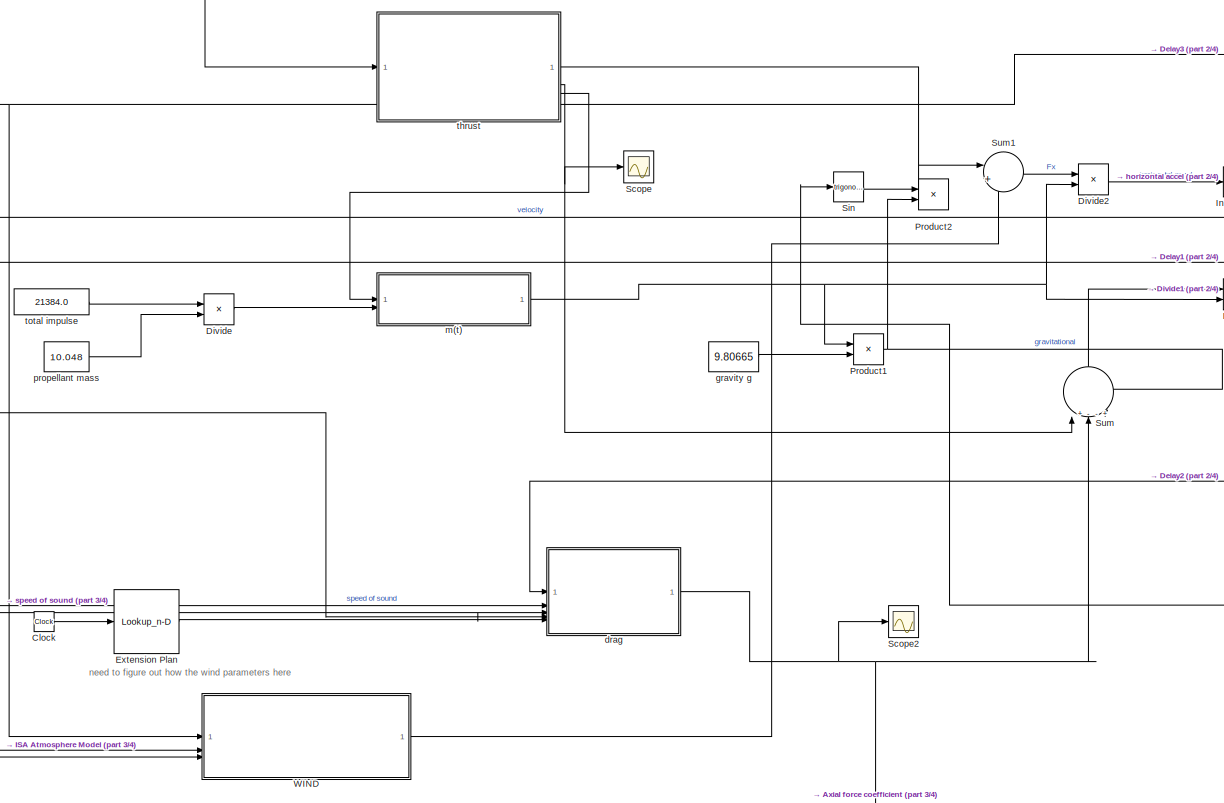
[diagram: root canvas - part 1/4, middle left region]
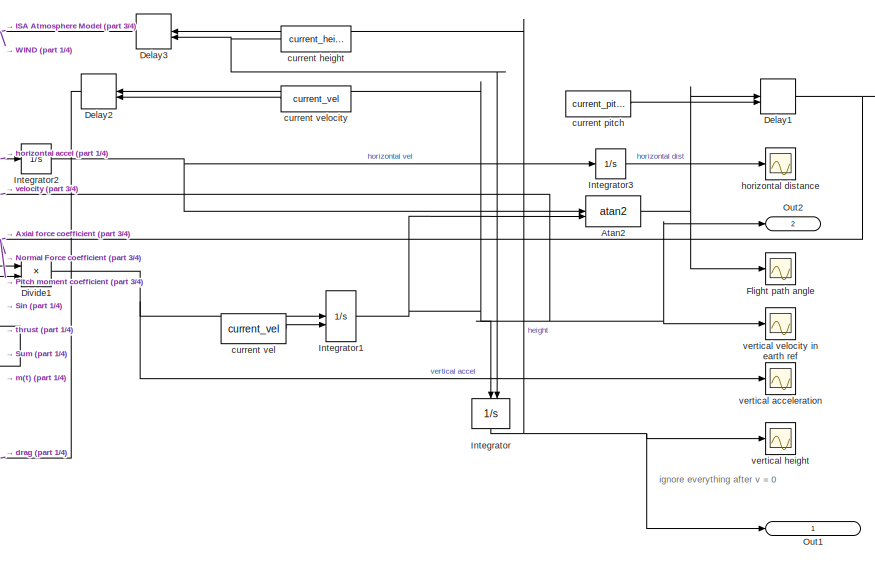
[diagram: root canvas - part 2/4, top center region]
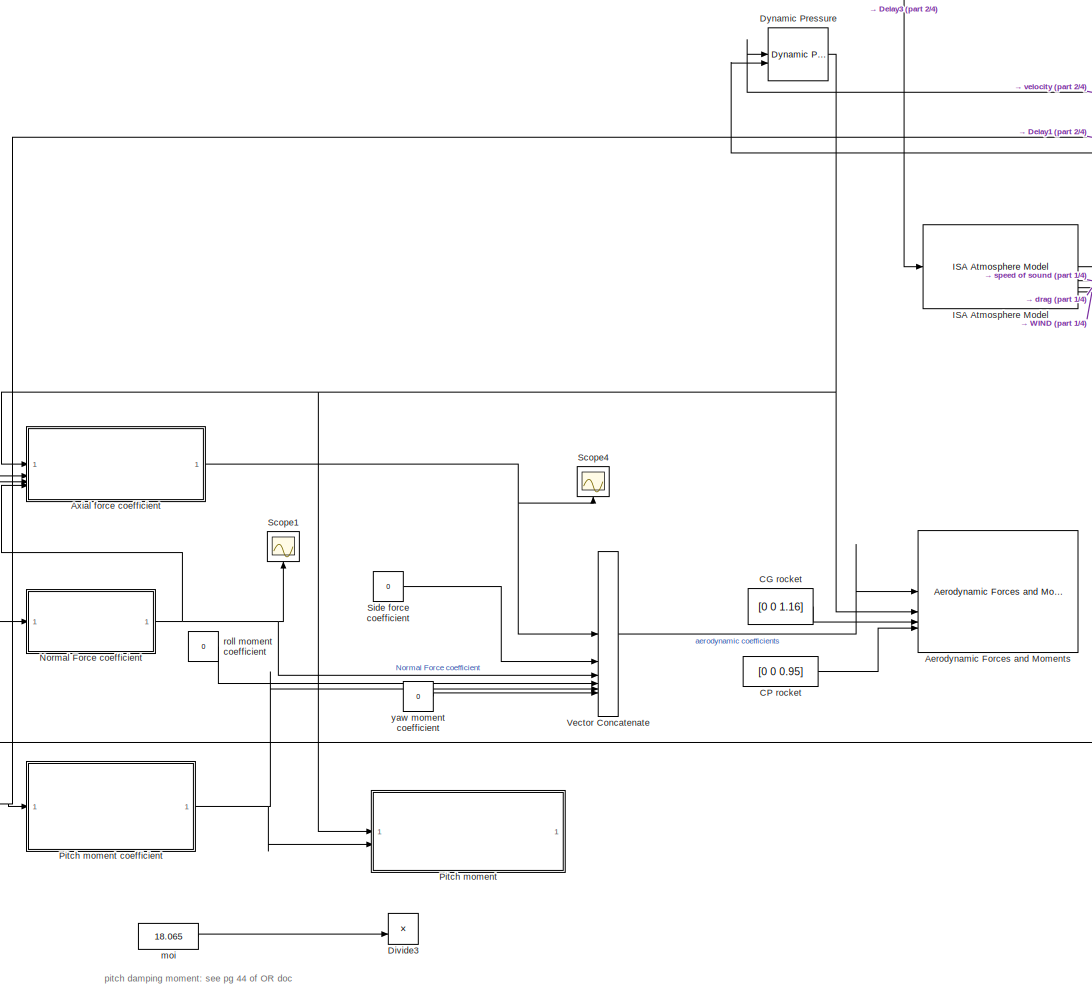
[diagram: root canvas - part 3/4, left side, full height]
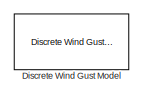
[diagram: root canvas - part 4/4, middle right region]
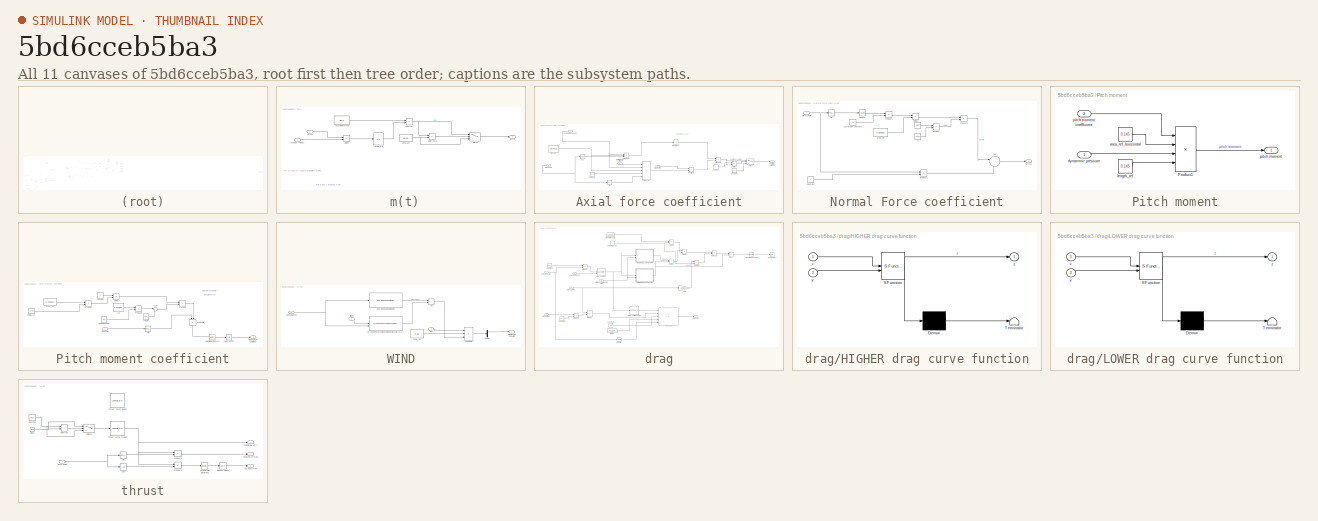
[diagram: thumbnail index - all 11 canvases of the model, root first then tree order]
MODEL slx_5bd6cceb5ba3
KIND model
CONFIG AbsTol = auto
CONFIG EnableMultiTasking = off
CONFIG FixedStep = auto
CONFIG MaxStep = auto
CONFIG MinStep = auto
CONFIG RelTol = 1e-3
CONFIG SampleTimeConstraint = Unconstrained
CONFIG SolverName = ode15s
CONFIG StartTime = 0
CONFIG StopTime = 200.0
BLOCK [SubSystem]  m(t)
BLOCK [Constant]  m(t)/Constant
  Value = 26.45
BLOCK [Product]  m(t)/Divide
  Inputs = */
BLOCK [Integrator]  m(t)/Integrator
BLOCK [Sum]  m(t)/Subtract
  IconShape = rectangular
  Inputs = +-
BLOCK [Sum]  m(t)/Subtract1
  IconShape = rectangular
  Inputs = +-
BLOCK [Switch]  m(t)/Switch
  Criteria = u2 > Threshold
  InputSameDT = off
  SaturateOnIntegerOverflow = off
BLOCK [Constant]  m(t)/Total initial mass
  Value = 36.5
BLOCK [Inport]  m(t)/exhaust velocity
  Port = 2
BLOCK [Outport]  m(t)/m(t)
BLOCK [Inport]  m(t)/thrust
BLOCK [Reference] Aerodynamic Forces and Moments   REF=aerolibadyn/Aerodynamic
Forces and Moments 
  Commented = on
  SourceBlock = aerolibadyn/Aerodynamic\nForces and Moments
  SourceType = Aerodynamic Forces and Moments
BLOCK [Trigonometry] Atan2
  Operator = atan2
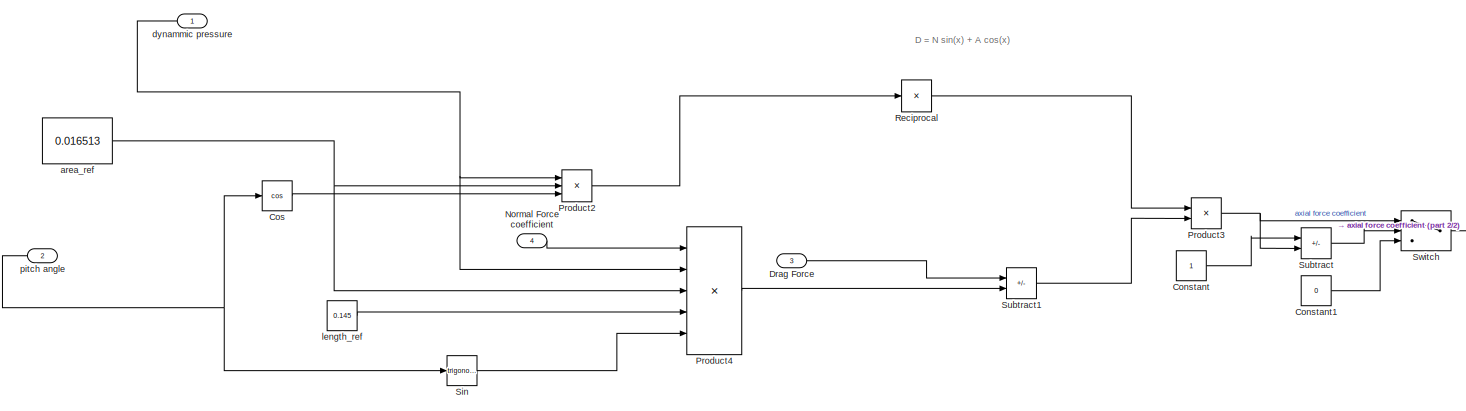
[diagram: Axial force coefficient - part 1/2, most of the canvas]
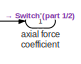
[diagram: Axial force coefficient - part 2/2, middle right region]
BLOCK [SubSystem] Axial force coefficient
  Commented = on
BLOCK [Constant] Axial force coefficient/Constant
BLOCK [Constant] Axial force coefficient/Constant1
  Value = 0
BLOCK [Trigonometry] Axial force coefficient/Cos
  Operator = cos
BLOCK [Inport] Axial force coefficient/Drag Force
  Port = 3
BLOCK [Inport] Axial force coefficient/Normal Force coefficient
  Port = 4
BLOCK [Product] Axial force coefficient/Product2
  Inputs = 3
BLOCK [Product] Axial force coefficient/Product3
BLOCK [Product] Axial force coefficient/Product4
  Inputs = 5
BLOCK [Product] Axial force coefficient/Reciprocal
  Inputs = /
BLOCK [Trigonometry] Axial force coefficient/Sin
BLOCK [Sum] Axial force coefficient/Subtract
  IconShape = rectangular
  Inputs = +-
BLOCK [Sum] Axial force coefficient/Subtract1
  IconShape = rectangular
  Inputs = +-
BLOCK [Switch] Axial force coefficient/Switch
  Criteria = u2 > Threshold
  InputSameDT = off
  SaturateOnIntegerOverflow = off
BLOCK [Constant] Axial force coefficient/area_ref
  Value = 0.016513
BLOCK [Outport] Axial force coefficient/axial force coefficient 
BLOCK [Inport] Axial force coefficient/dynammic pressure
BLOCK [Constant] Axial force coefficient/length_ref
  Value = 0.145
BLOCK [Inport] Axial force coefficient/pitch angle
  Port = 2
BLOCK [Constant] CG rocket
  Commented = on
  Value = [0 0 1.16]
  VectorParams1D = off
BLOCK [Constant] CP rocket
  Commented = on
  Value = [0 0 0.95]
  VectorParams1D = off
BLOCK [Clock] Clock
BLOCK [Delay] Delay1
  DelayLength = 1
  InitialConditionSource = Input port
  InputPortMap = u0,p4
BLOCK [Delay] Delay2
  DelayLength = 1
  InitialConditionSource = Input port
  InputPortMap = u0,p4
BLOCK [Delay] Delay3
  DelayLength = 1
  InitialConditionSource = Input port
  InputPortMap = u0,p4
BLOCK [Reference] Discrete Wind Gust Model  REF=aerolibwind2/Discrete Wind Gust Model
  SourceBlock = aerolibwind2/Discrete Wind Gust Model
  SourceType = Discrete Wind Gust Model
BLOCK [Product] Divide
  Inputs = */
BLOCK [Product] Divide1
  Inputs = */
BLOCK [Product] Divide2
  Inputs = */
BLOCK [Product] Divide3
  Commented = on
  Inputs = */
BLOCK [Reference] Dynamic Pressure  REF=aerolibasang/Dynamic Pressure
  Commented = on
  SourceBlock = aerolibasang/Dynamic Pressure
  SourceType = Dynamic Pressure
BLOCK [Lookup_n-D] Extension Plan
  BreakpointsForDimension1 = [0 4.99 5 5.1 5.11 6]
  InputPortMap = u0
  InternalRulePriority = Speed
  NumberOfTableDimensions = 1
  RndMeth = Simplest
  Table = [0 0 extension_length 0.01*extension_length 0 0]
BLOCK [Scope] Flight path angle
  Floating = off
  NumInputPorts = 1
  ScopeSpecificationString = Simulink.scopes.TimeScopeBlockCfg('CurrentConfiguration', extmgr.ConfigurationSet(extmgr.Configuration('Core','General UI',true),extmgr.Configuration('Core','Source UI',true),extmgr.Configuration('Sources','WiredSimulink',true,'DataLoggingVariableName','ScopeData1'),extmgr.Configuration('Visuals','Time Domain',true,'SerializedDisplays',{struct('MinYLimReal','-0.05','MaxYLimReal','1.56955','YLabelR...<+1469ch>
BLOCK [Reference] ISA Atmosphere Model  REF=aerolibatmos2/ISA Atmosphere Model
  SourceBlock = aerolibatmos2/ISA Atmosphere Model
  SourceType = International Standard Atmosphere Model
BLOCK [Integrator] Integrator
  InitialConditionSource = external
  NameLocation = left
BLOCK [Integrator] Integrator1
  InitialConditionSource = external
BLOCK [Integrator] Integrator2
BLOCK [Integrator] Integrator3
BLOCK [SubSystem] Normal Force coefficient
  Commented = on
BLOCK [Constant] Normal Force coefficient/Constant
  Value = 4
BLOCK [Product] Normal Force coefficient/Divide1
  Inputs = */
BLOCK [Outport] Normal Force coefficient/Normal
BLOCK [Product] Normal Force coefficient/Product
BLOCK [Product] Normal Force coefficient/Product1
BLOCK [Product] Normal Force coefficient/Product2
BLOCK [Product] Normal Force coefficient/Product3
BLOCK [Trigonometry] Normal Force coefficient/Sin
BLOCK [Math] Normal Force coefficient/Square
  Operator = square
BLOCK [Sum] Normal Force coefficient/Sum
  Inputs = |++
BLOCK [Constant] Normal Force coefficient/area_ref
  Value = 0.016513
BLOCK [Constant] Normal Force coefficient/correction constant
  Value = 1.1
BLOCK [Constant] Normal Force coefficient/d
  Value = 0.145
BLOCK [Constant] Normal Force coefficient/l
  Value = 2.91
BLOCK [Inport] Normal Force coefficient/pitch angle
BLOCK [Outport] Out1
  IconDisplay = Signal name
  SignalName = height
BLOCK [Outport] Out2
  IconDisplay = Signal name
  Port = 2
  SignalName = velocity
BLOCK [SubSystem] Pitch moment
  Commented = on
BLOCK [SubSystem] Pitch moment coefficient
  Commented = on
BLOCK [Constant] Pitch moment coefficient/A(l)
  Value = 0.016513
BLOCK [Constant] Pitch moment coefficient/Constant
  Value = 2
BLOCK [Product] Pitch moment coefficient/Divide
  Inputs = */
BLOCK [Math] Pitch moment coefficient/Magnitude Squared
  Operator = magnitude^2
BLOCK [Product] Pitch moment coefficient/Product2
BLOCK [Product] Pitch moment coefficient/Product3
BLOCK [Product] Pitch moment coefficient/Product4
BLOCK [Product] Pitch moment coefficient/Product5
  NameLocation = left
BLOCK [Trigonometry] Pitch moment coefficient/Sin
BLOCK [Sqrt] Pitch moment coefficient/Square Root
BLOCK [Sum] Pitch moment coefficient/Sum3
  Inputs = |+-
BLOCK [Constant] Pitch moment coefficient/area_ref
  Value = 0.016513
BLOCK [Constant] Pitch moment coefficient/length of rocket
  Value = 2.91
BLOCK [Constant] Pitch moment coefficient/length_ref
  Value = 0.145
BLOCK [Inport] Pitch moment coefficient/pitch angle
BLOCK [Outport] Pitch moment coefficient/pitch moment coefficient
BLOCK [Constant] Pitch moment coefficient/volume
  Value = 0.042
BLOCK [Product] Pitch moment/Product1
  Inputs = 4
BLOCK [Constant] Pitch moment/area_ref_horizontal
  Value = 0.145
BLOCK [Inport] Pitch moment/dynammic pressure
BLOCK [Constant] Pitch moment/length_ref
  Value = 0.145
BLOCK [Outport] Pitch moment/pitch moment
BLOCK [Inport] Pitch moment/pitch moment coefficient
  Port = 2
BLOCK [Product] Product1
BLOCK [Product] Product2
BLOCK [Scope] Scope
  Floating = off
  NumInputPorts = 1
  ScopeSpecificationString = Simulink.scopes.TimeScopeBlockCfg('CurrentConfiguration', extmgr.ConfigurationSet(extmgr.Configuration('Core','General UI',true),extmgr.Configuration('Core','Source UI',true),extmgr.Configuration('Sources','WiredSimulink',true,'DataLoggingVariableName','ScopeData1'),extmgr.Configuration('Visuals','Time Domain',true,'SerializedDisplays',{struct('MinYLimReal','-789.53293','MaxYLimReal','7105.79635',...<+1385ch>
BLOCK [Scope] Scope1
  Commented = on
  Floating = off
  NameLocation = right
  NumInputPorts = 1
  ScopeSpecificationString = Simulink.scopes.TimeScopeBlockCfg('CurrentConfiguration', extmgr.ConfigurationSet(extmgr.Configuration('Core','General UI',true),extmgr.Configuration('Core','Source UI',true),extmgr.Configuration('Sources','WiredSimulink',true,'DataLoggingVariableName','ScopeData1'),extmgr.Configuration('Visuals','Time Domain',true,'SerializedDisplays',{struct('MinYLimReal','-4.3167','MaxYLimReal','38.85026','YLab...<+1413ch>
BLOCK [Scope] Scope2
  Floating = off
  NumInputPorts = 1
  ScopeSpecificationString = Simulink.scopes.TimeScopeBlockCfg('CurrentConfiguration', extmgr.ConfigurationSet(extmgr.Configuration('Core','General UI',true),extmgr.Configuration('Core','Source UI',true),extmgr.Configuration('Sources','WiredSimulink',true,'DataLoggingVariableName','ScopeData1'),extmgr.Configuration('Visuals','Time Domain',true,'SerializedDisplays',{struct('MinYLimReal','-154.64138','MaxYLimReal','1391.7724','...<+1377ch>
BLOCK [Scope] Scope4
  Commented = on
  Floating = off
  NameLocation = right
  NumInputPorts = 1
  ScopeSpecificationString = Simulink.scopes.TimeScopeBlockCfg('CurrentConfiguration', extmgr.ConfigurationSet(extmgr.Configuration('Core','General UI',true),extmgr.Configuration('Core','Source UI',true),extmgr.Configuration('Sources','WiredSimulink',true,'DataLoggingVariableName','ScopeData2'),extmgr.Configuration('Visuals','Time Domain',true,'SerializedDisplays',{struct('MinYLimReal','-25163147.59112','MaxYLimReal','2795906...<+1473ch>
BLOCK [Constant] Side force coefficient
  Commented = on
  Value = 0
BLOCK [Trigonometry] Sin
BLOCK [Sum] Sum
  Inputs = |+--+-
  NameLocation = right
BLOCK [Sum] Sum1
  Inputs = |++
BLOCK [Concatenate] Vector Concatenate
  Commented = on
  NumInputs = 6
BLOCK [SubSystem] WIND
BLOCK [Sum] WIND/Add
  IconShape = rectangular
BLOCK [Inport] WIND/Altitude
BLOCK [Demux] WIND/Demux
  Outputs = 3
BLOCK [Reference] WIND/Discrete Wind Gust Model1  REF=aerolibwind2/Discrete Wind Gust Model
  SourceBlock = aerolibwind2/Discrete Wind Gust Model
  SourceType = Discrete Wind Gust Model
BLOCK [Reference] WIND/Dryden Wind Turbulence Model (Discrete (+q +r))  REF=aerolibwind2/Dryden Wind Turbulence Model 
(Continuous (+q -r))
  LibrarySourceBlock = aerolibwind2/Dryden Wind Turbulence Model \n(Discrete (+q +r))
  SourceBlock = aerolibwind2/Dryden Wind Turbulence Model \n(Continuous (+q -r))
  SourceType = Wind Turbulence Model
BLOCK [Inport] WIND/In2
  Port = 2
BLOCK [Product] WIND/Product2
  Inputs = 3
BLOCK [Constant] WIND/area_ref
  Value = 0.15
BLOCK [Inport] WIND/speed of sound
  Port = 3
BLOCK [Outport] WIND/wind force u direction
BLOCK [Constant] current height
  Value = current_height
BLOCK [Constant] current pitch
  Value = current_pitch
BLOCK [Constant] current vel
  Value = current_vel
BLOCK [Constant] current velocity
  Value = current_vel
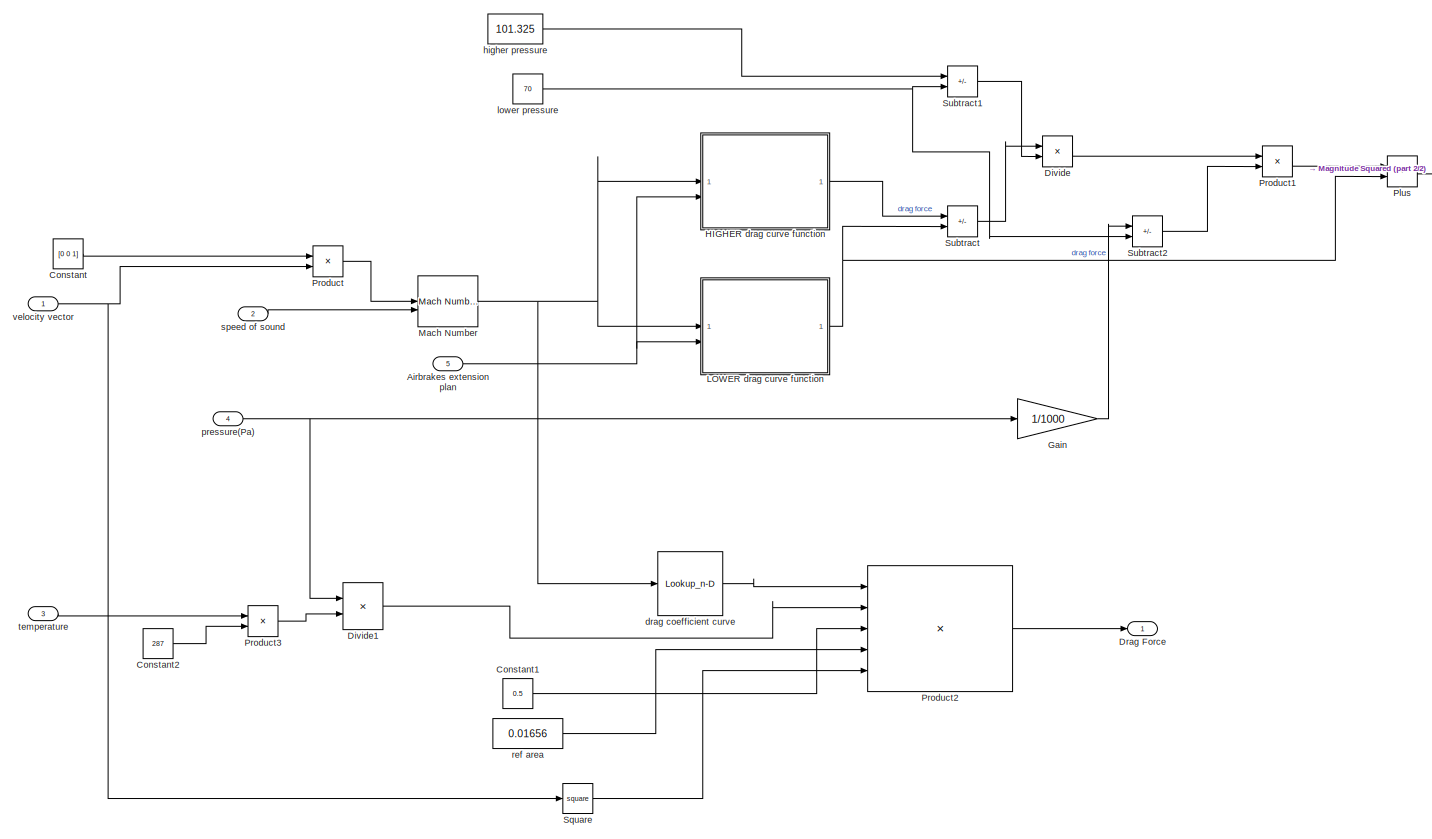
[diagram: drag - part 1/2, most of the canvas]
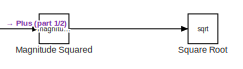
[diagram: drag - part 2/2, top right region]
BLOCK [SubSystem] drag
BLOCK [Inport] drag/Airbrakes extension plan
  Port = 5
BLOCK [Constant] drag/Constant
  Value = [0 0 1]
  VectorParams1D = off
BLOCK [Constant] drag/Constant1
  Value = 0.5
BLOCK [Constant] drag/Constant2
  Value = 287
BLOCK [Product] drag/Divide
  Commented = on
  Inputs = */
BLOCK [Product] drag/Divide1
  Inputs = */
BLOCK [Outport] drag/Drag Force
BLOCK [Gain] drag/Gain
  Commented = on
  Gain = 1/1000
BLOCK [SubSystem] drag/HIGHER drag curve function
  Commented = on
  ErrorFcn = Stateflow.Translate.translate
  LibrarySourceBlock = simulink/User-Defined\nFunctions/MATLAB Function
  PermitHierarchicalResolution = ExplicitOnly
  SFBlockType = MATLAB Function
  TreatAsAtomicUnit = on
BLOCK [Demux] drag/HIGHER drag curve function/ Demux 
  Outputs = 1
BLOCK [S-Function] drag/HIGHER drag curve function/ SFunction 
  EnableBusSupport = on
  FunctionName = sf_sfun
  PortCounts = [2 2]
  SFcnIsStateOwnerBlock = off
  SFunctionDeploymentMode = off
  Tag = Stateflow S-Function 1
BLOCK [Terminator] drag/HIGHER drag curve function/ Terminator 
BLOCK [Inport] drag/HIGHER drag curve function/x
BLOCK [Inport] drag/HIGHER drag curve function/y
  Port = 2
BLOCK [Outport] drag/HIGHER drag curve function/z
BLOCK [SubSystem] drag/LOWER drag curve function
  Commented = on
  ErrorFcn = Stateflow.Translate.translate
  LibrarySourceBlock = simulink/User-Defined\nFunctions/MATLAB Function
  PermitHierarchicalResolution = ExplicitOnly
  SFBlockType = MATLAB Function
  TreatAsAtomicUnit = on
BLOCK [Demux] drag/LOWER drag curve function/ Demux 
  Outputs = 1
BLOCK [S-Function] drag/LOWER drag curve function/ SFunction 
  EnableBusSupport = on
  FunctionName = sf_sfun
  PortCounts = [2 2]
  SFcnIsStateOwnerBlock = off
  SFunctionDeploymentMode = off
  Tag = Stateflow S-Function 2
BLOCK [Terminator] drag/LOWER drag curve function/ Terminator 
BLOCK [Inport] drag/LOWER drag curve function/x
BLOCK [Inport] drag/LOWER drag curve function/y
  Port = 2
BLOCK [Outport] drag/LOWER drag curve function/z
BLOCK [Reference] drag/Mach Number  REF=aerolibasang/Mach Number
  SourceBlock = aerolibasang/Mach Number
  SourceType = Mach Number
BLOCK [Math] drag/Magnitude Squared
  Commented = on
  Operator = magnitude^2
BLOCK [Sum] drag/Plus
  Commented = on
  IconShape = rectangular
BLOCK [Product] drag/Product
BLOCK [Product] drag/Product1
  Commented = on
BLOCK [Product] drag/Product2
  Inputs = 5
BLOCK [Product] drag/Product3
BLOCK [Math] drag/Square
  Operator = square
BLOCK [Sqrt] drag/Square Root
  Commented = on
BLOCK [Sum] drag/Subtract
  Commented = on
  IconShape = rectangular
  Inputs = +-
BLOCK [Sum] drag/Subtract1
  Commented = on
  IconShape = rectangular
  Inputs = +-
BLOCK [Sum] drag/Subtract2
  Commented = on
  IconShape = rectangular
  Inputs = +-
BLOCK [Lookup_n-D] drag/drag coefficient curve
  BreakpointsForDimension1 = [0.025\n0.075\n0.125\n0.175\n0.225\n0.275\n0.3\n0.325\n0.35\n0.375\n0.4\n0.425\n0.45\n0.475\n0.5\n0.525\n0.55\n0.575\n0.6\n0.625\n0.65\n0.675\n0.7\n0.725\n0.75\n0.775\n0.8\n0.825\n0.85\n0.875\n0.9\n0.925\n0.95\n0.96\n0.97\n0.975\n0.98\n0.99\n1\n1.025\n1.03\n1.04\n1.05\n1.08\n1.09\n1.1\n1.11\n1.12\n1.125\n1.13\n1.14\n1.15\n1.16\n1.17\n1.175\n1.18\n1.19\n1.2\n1.25\n1.3\n1.35\n1.4\n1.45\n1.5\n1.55\n1.6\n1.65\n1.7\n1.75\n1.8\n1.85\n1.9\n1.95\n2]
  InputPortMap = u0
  InternalRulePriority = Speed
  NumberOfTableDimensions = 1
  RndMeth = Simplest
  Table = [0.414355663\n0.348220023\n0.323436783\n0.308737589\n0.298518822\n0.290762121\n0.284796701\n0.281981595\n0.279419873\n0.277057421\n0.274906231\n0.272939302\n0.271147678\n0.269517368\n0.268043125\n0.266723372\n0.265624717\n0.264581106\n0.263628356\n0.262844663\n0.262127003\n0.261573935\n0.261178859\n0.260947896\n0.260908395\n0.261155796\n0.261965072\n0.264123632\n0.269418388\n0.279409465\n0.292628254\n0.304847858\n0.386158911\n0.4...<+486ch>
BLOCK [Constant] drag/higher pressure
  Commented = on
  Value = 101.325
BLOCK [Constant] drag/lower pressure
  Commented = on
  Value = 70
BLOCK [Inport] drag/pressure(Pa)
  Port = 4
BLOCK [Constant] drag/ref area
  Value = 0.01656
BLOCK [Inport] drag/speed of sound
  Port = 2
BLOCK [Inport] drag/temperature
  Port = 3
BLOCK [Inport] drag/velocity vector
BLOCK [Constant] gravity g
  Value = 9.80665
BLOCK [Scope] horizontal distance
  Floating = off
  NumInputPorts = 1
  ScopeSpecificationString = Simulink.scopes.TimeScopeBlockCfg('CurrentConfiguration', extmgr.ConfigurationSet(extmgr.Configuration('Core','General UI',true),extmgr.Configuration('Core','Source UI',true),extmgr.Configuration('Sources','WiredSimulink',true,'DataLoggingVariableName','ScopeData1'),extmgr.Configuration('Visuals','Time Domain',true,'SerializedDisplays',{struct('MinYLimReal','-0.39532','MaxYLimReal','3.55787','YLab...<+1374ch>
BLOCK [Constant] moi
  Commented = on
  Value = 18.065
BLOCK [Constant] propellant mass
  Value = 10.048
BLOCK [Constant] roll moment coefficient
  Commented = on
  Value = 0
BLOCK [SubSystem] thrust
BLOCK [Clock] thrust/Clock
BLOCK [Constant] thrust/Constant
  Value = 4.517
BLOCK [Trigonometry] thrust/Cos
  Operator = cos
BLOCK [Math] thrust/Magnitude Squared1
  Operator = magnitude^2
BLOCK [Product] thrust/Product5
BLOCK [Product] thrust/Product6
BLOCK [Trigonometry] thrust/Sin
BLOCK [Sqrt] thrust/Square Root1
BLOCK [Sum] thrust/Subtract
  IconShape = rectangular
  Inputs = +-
BLOCK [Switch] thrust/Switch
  InputSameDT = off
  SaturateOnIntegerOverflow = off
BLOCK [Outport] thrust/horizontal thrust
BLOCK [Outport] thrust/magnitude of T
  Port = 3
BLOCK [Inport] thrust/pitch angle
BLOCK [Lookup_n-D] thrust/thrust curve N5800
  BreakpointsForDimension1 = [0.019\n0.049\n0.103\n0.384\n1.109\n1.569\n1.991\n2.622\n3.011\n3.192\n3.334\n3.423\n3.513\n3.581\n3.594]
  BreakpointsForDimension2 = [1:3]
  Commented = on
  InputPortMap = u0
  InternalRulePriority = Speed
  NumberOfTableDimensions = 1
  RndMeth = Simplest
  Table = [6694.9\n6720.292\n6593.334\n6677.973\n6957.279\n6940.352\n6720.292\n6009.329\n3275.507\n2606.864\n1599.666\n1041.053\n389.337\n220.06\n0.0]
BLOCK [Lookup_n-D] thrust/thrust curve O5500
  BreakpointsForDimension1 = [0.02\n0.063\n0.116\n0.206\n0.349\n0.578\n0.921\n1.378\n1.834\n2.29\n2.746\n2.87\n3.202\n3.659\n3.999\n4.19\n4.38\n4.487\n4.517]
  BreakpointsForDimension2 = [1:3]
  InputPortMap = u0
  InternalRulePriority = Speed
  NumberOfTableDimensions = 1
  RndMeth = Simplest
  Table = [97.51531498\n5878.535832\n6146.986029\n6321\n6313.794354\n6286.771406\n6281.544745\n6265.531146\n6213.598154\n6137.533558\n6164.890123\n6079\n4268.057057\n2843.958783\n1793.95598\n1242.265247\n513.7576886\n77.83193263\n0]
BLOCK [Outport] thrust/vertical thrust
  Port = 2
BLOCK [Constant] total impulse
  Value = 21384.0
BLOCK [Scope] vertical acceleration
  Floating = off
  NumInputPorts = 1
  ScopeSpecificationString = Simulink.scopes.TimeScopeBlockCfg('CurrentConfiguration', extmgr.ConfigurationSet(extmgr.Configuration('Core','General UI',true),extmgr.Configuration('Core','Source UI',true),extmgr.Configuration('Sources','WiredSimulink',true,'DataLoggingVariableName','ScopeData3'),extmgr.Configuration('Visuals','Time Domain',true,'SerializedDisplays',{struct('MinYLimReal','-43.68918','MaxYLimReal','139.37237','Y...<+1457ch>
BLOCK [Scope] vertical height
  Floating = off
  NumInputPorts = 1
  ScopeSpecificationString = Simulink.scopes.TimeScopeBlockCfg('CurrentConfiguration', extmgr.ConfigurationSet(extmgr.Configuration('Core','General UI',true),extmgr.Configuration('Core','Source UI',true),extmgr.Configuration('Sources','WiredSimulink',true,'DataLoggingVariableName','ScopeData3'),extmgr.Configuration('Visuals','Time Domain',true,'SerializedDisplays',{struct('MinYLimReal','-3160.6296','MaxYLimReal','10220.99872'...<+1490ch>
BLOCK [Scope] vertical velocity in earth ref
  Floating = off
  NumInputPorts = 1
  ScopeSpecificationString = Simulink.scopes.TimeScopeBlockCfg('CurrentConfiguration', extmgr.ConfigurationSet(extmgr.Configuration('Core','General UI',true),extmgr.Configuration('Core','Source UI',true),extmgr.Configuration('Sources','WiredSimulink',true,'DataLoggingVariableName','ScopeData1'),extmgr.Configuration('Visuals','Time Domain',true,'SerializedDisplays',{struct('MinYLimReal','-85.28204','MaxYLimReal','641.84655','Y...<+1453ch>
BLOCK [Constant] yaw moment coefficient
  Commented = on
  Value = 0
ANNOTATION (root): ignore everything after v = 0
ANNOTATION (root): need to figure out how the wind parameters here
ANNOTATION (root): pitch damping moment: see pg 44 of OR doc
ANNOTATION  m(t): mt is mass of rocket's propellant grains
ANNOTATION  m(t): orig mass + integral(-T/ve)
ANNOTATION Axial force coefficient: D = N sin(x) + A cos(x)
ANNOTATION Pitch moment coefficient: d is length ref (diameter)
ANNOTATION Pitch moment coefficient: l is length of rocket
NET  m(t)/Constant:1 ->  m(t)/Subtract1:2,  m(t)/Switch:3
LINE  m(t)/Divide:1 ->  m(t)/Integrator:1
LINE  m(t)/Integrator:1 ->  m(t)/Subtract:2
LINE  m(t)/Subtract1:1 ->  m(t)/Switch:2
NET  m(t)/Subtract:1 ->  m(t)/Subtract1:1,  m(t)/Switch:1
LINE  m(t)/Switch:1 ->  m(t)/m(t):1
LINE  m(t)/Total initial mass:1 ->  m(t)/Subtract:1
LINE  m(t)/exhaust velocity:1 ->  m(t)/Divide:2
LINE  m(t)/thrust:1 ->  m(t)/Divide:1
NET  m(t):1 -> Divide1:2, Divide2:2, Product1:1
NET Atan2:1 -> Delay1:1, Flight path angle:1
LINE Axial force coefficient/Constant1:1 -> Axial force coefficient/Switch:3
LINE Axial force coefficient/Constant:1 -> Axial force coefficient/Subtract:1
LINE Axial force coefficient/Cos:1 -> Axial force coefficient/Product2:3
LINE Axial force coefficient/Drag Force:1 -> Axial force coefficient/Subtract1:1
LINE Axial force coefficient/Normal Force coefficient:1 -> Axial force coefficient/Product4:1
LINE Axial force coefficient/Product2:1 -> Axial force coefficient/Reciprocal:1
NET Axial force coefficient/Product3:1 -> Axial force coefficient/Subtract:2, Axial force coefficient/Switch:1
LINE Axial force coefficient/Product4:1 -> Axial force coefficient/Subtract1:2
LINE Axial force coefficient/Reciprocal:1 -> Axial force coefficient/Product3:1
LINE Axial force coefficient/Sin:1 -> Axial force coefficient/Product4:5
LINE Axial force coefficient/Subtract1:1 -> Axial force coefficient/Product3:2
LINE Axial force coefficient/Subtract:1 -> Axial force coefficient/Switch:2
LINE Axial force coefficient/Switch:1 -> Axial force coefficient/axial force coefficient :1
NET Axial force coefficient/area_ref:1 -> Axial force coefficient/Product2:2, Axial force coefficient/Product4:3
NET Axial force coefficient/dynammic pressure:1 -> Axial force coefficient/Product2:1, Axial force coefficient/Product4:2
LINE Axial force coefficient/length_ref:1 -> Axial force coefficient/Product4:4
NET Axial force coefficient/pitch angle:1 -> Axial force coefficient/Cos:1, Axial force coefficient/Sin:1
NET Axial force coefficient:1 -> Scope4:1, Vector Concatenate:1
LINE CG rocket:1 -> Aerodynamic Forces and Moments :3
LINE CP rocket:1 -> Aerodynamic Forces and Moments :4
LINE Clock:1 -> Extension Plan:1
NET Delay1:1 -> Axial force coefficient:2, Normal Force coefficient:1, Pitch moment coefficient:1, Sin:1, thrust:1
LINE Delay2:1 -> drag:1
NET Delay3:1 -> ISA Atmosphere Model:1, WIND:1
NET Divide1:1 -> Integrator1:1, vertical acceleration:1
LINE Divide2:1 -> Integrator2:1
LINE Divide:1 ->  m(t):2
NET Dynamic Pressure:1 -> Aerodynamic Forces and Moments :2, Axial force coefficient:1, Pitch moment:1
LINE Extension Plan:1 -> drag:5
LINE ISA Atmosphere Model:1 -> drag:3
NET ISA Atmosphere Model:2 -> WIND:3, drag:2
LINE ISA Atmosphere Model:3 -> drag:4
NET ISA Atmosphere Model:4 -> Dynamic Pressure:2, WIND:2
NET Integrator1:1 -> Atan2:2, Delay2:1, Dynamic Pressure:1, Integrator:1, Out2:1, vertical velocity in earth ref:1
NET Integrator2:1 -> Atan2:1, Integrator3:1
LINE Integrator3:1 -> horizontal distance:1
NET Integrator:1 -> Delay3:1, Out1:1, vertical height:1
LINE Normal Force coefficient/Constant:1 -> Normal Force coefficient/Product1:2
LINE Normal Force coefficient/Divide1:1 -> Normal Force coefficient/Product3:1
LINE Normal Force coefficient/Product1:1 -> Normal Force coefficient/Sum:2
LINE Normal Force coefficient/Product2:1 -> Normal Force coefficient/Divide1:1
LINE Normal Force coefficient/Product3:1 -> Normal Force coefficient/Sum:1
LINE Normal Force coefficient/Product:1 -> Normal Force coefficient/Product3:2
LINE Normal Force coefficient/Sin:1 -> Normal Force coefficient/Square:1
LINE Normal Force coefficient/Square:1 -> Normal Force coefficient/Product2:1
LINE Normal Force coefficient/Sum:1 -> Normal Force coefficient/Normal:1
LINE Normal Force coefficient/area_ref:1 -> Normal Force coefficient/Divide1:2
LINE Normal Force coefficient/correction constant:1 -> Normal Force coefficient/Product2:2
LINE Normal Force coefficient/d:1 -> Normal Force coefficient/Product:2
LINE Normal Force coefficient/l:1 -> Normal Force coefficient/Product:1
NET Normal Force coefficient/pitch angle:1 -> Normal Force coefficient/Product1:1, Normal Force coefficient/Sin:1
NET Normal Force coefficient:1 -> Axial force coefficient:4, Scope1:1, Vector Concatenate:3
LINE Pitch moment coefficient/A(l):1 -> Pitch moment coefficient/Product3:1
LINE Pitch moment coefficient/Constant:1 -> Pitch moment coefficient/Divide:1
LINE Pitch moment coefficient/Divide:1 -> Pitch moment coefficient/Product4:1
LINE Pitch moment coefficient/Magnitude Squared:1 -> Pitch moment coefficient/Square Root:1
LINE Pitch moment coefficient/Product2:1 -> Pitch moment coefficient/Divide:2
LINE Pitch moment coefficient/Product3:1 -> Pitch moment coefficient/Sum3:1
LINE Pitch moment coefficient/Product4:1 -> Pitch moment coefficient/Product5:2
LINE Pitch moment coefficient/Product5:1 -> Pitch moment coefficient/Magnitude Squared:1
LINE Pitch moment coefficient/Sin:1 -> Pitch moment coefficient/Product5:1
LINE Pitch moment coefficient/Square Root:1 -> Pitch moment coefficient/pitch moment coefficient:1
LINE Pitch moment coefficient/Sum3:1 -> Pitch moment coefficient/Product4:2
LINE Pitch moment coefficient/area_ref:1 -> Pitch moment coefficient/Product2:1
LINE Pitch moment coefficient/length of rocket:1 -> Pitch moment coefficient/Product3:2
LINE Pitch moment coefficient/length_ref:1 -> Pitch moment coefficient/Product2:2
LINE Pitch moment coefficient/pitch angle:1 -> Pitch moment coefficient/Sin:1
LINE Pitch moment coefficient/volume:1 -> Pitch moment coefficient/Sum3:2
NET Pitch moment coefficient:1 -> Pitch moment:2, Vector Concatenate:5
LINE Pitch moment/Product1:1 -> Pitch moment/pitch moment:1
LINE Pitch moment/area_ref_horizontal:1 -> Pitch moment/Product1:2
LINE Pitch moment/dynammic pressure:1 -> Pitch moment/Product1:3
LINE Pitch moment/length_ref:1 -> Pitch moment/Product1:4
LINE Pitch moment/pitch moment coefficient:1 -> Pitch moment/Product1:1
NET Product1:1 -> Product2:2, Sum:5
LINE Side force coefficient:1 -> Vector Concatenate:2
LINE Sin:1 -> Product2:1
LINE Sum1:1 -> Divide2:1
LINE Sum:1 -> Divide1:1
LINE Vector Concatenate:1 -> Aerodynamic Forces and Moments :1
LINE WIND/Add:1 -> WIND/Product2:3
LINE WIND/Altitude:1 -> WIND/Dryden Wind Turbulence Model (Discrete (+q +r)):1
LINE WIND/Demux:1 -> WIND/wind force u direction:1
LINE WIND/Discrete Wind Gust Model1:1 -> WIND/Add:1
LINE WIND/Dryden Wind Turbulence Model (Discrete (+q +r)):1 -> WIND/Add:2
LINE WIND/In2:1 -> WIND/Product2:1
LINE WIND/Product2:1 -> WIND/Demux:1
LINE WIND/area_ref:1 -> WIND/Product2:2
NET WIND/speed of sound:1 -> WIND/Discrete Wind Gust Model1:1, WIND/Dryden Wind Turbulence Model (Discrete (+q +r)):2
LINE WIND:1 -> Sum1:2
NET current height:1 -> Delay3:2, Integrator:2
LINE current pitch:1 -> Delay1:2
LINE current vel:1 -> Integrator1:2
LINE current velocity:1 -> Delay2:2
NET drag/Airbrakes extension plan:1 -> drag/HIGHER drag curve function:2, drag/LOWER drag curve function:2
LINE drag/Constant1:1 -> drag/Product2:3
LINE drag/Constant2:1 -> drag/Product3:2
LINE drag/Constant:1 -> drag/Product:1
LINE drag/Divide1:1 -> drag/Product2:2
LINE drag/Divide:1 -> drag/Product1:1
LINE drag/Gain:1 -> drag/Subtract2:1
LINE drag/HIGHER drag curve function:1 -> drag/Subtract:1
NET drag/LOWER drag curve function:1 -> drag/Plus:2, drag/Subtract:2
NET drag/Mach Number:1 -> drag/HIGHER drag curve function:1, drag/LOWER drag curve function:1, drag/drag coefficient curve:1
LINE drag/Magnitude Squared:1 -> drag/Square Root:1
LINE drag/Plus:1 -> drag/Magnitude Squared:1
LINE drag/Product1:1 -> drag/Plus:1
LINE drag/Product2:1 -> drag/Drag Force:1
LINE drag/Product3:1 -> drag/Divide1:2
LINE drag/Product:1 -> drag/Mach Number:1
LINE drag/Square:1 -> drag/Product2:5
LINE drag/Subtract1:1 -> drag/Divide:2
LINE drag/Subtract2:1 -> drag/Product1:2
LINE drag/Subtract:1 -> drag/Divide:1
LINE drag/drag coefficient curve:1 -> drag/Product2:1
LINE drag/higher pressure:1 -> drag/Subtract1:1
NET drag/lower pressure:1 -> drag/Subtract1:2, drag/Subtract2:2
NET drag/pressure(Pa):1 -> drag/Divide1:1, drag/Gain:1
LINE drag/ref area:1 -> drag/Product2:4
LINE drag/speed of sound:1 -> drag/Mach Number:2
LINE drag/temperature:1 -> drag/Product3:1
NET drag/velocity vector:1 -> drag/Product:2, drag/Square:1
NET drag:1 -> Axial force coefficient:3, Scope2:1, Sum:3
LINE gravity g:1 -> Product1:2
LINE moi:1 -> Divide3:2
LINE propellant mass:1 -> Divide:2
LINE roll moment coefficient:1 -> Vector Concatenate:4
NET thrust/Clock:1 -> thrust/Subtract:2, thrust/Switch:1
NET thrust/Constant:1 -> thrust/Subtract:1, thrust/Switch:3
LINE thrust/Cos:1 -> thrust/Product5:2
LINE thrust/Magnitude Squared1:1 -> thrust/Square Root1:1
LINE thrust/Product5:1 -> thrust/Magnitude Squared1:1
LINE thrust/Product6:1 -> thrust/horizontal thrust:1
LINE thrust/Sin:1 -> thrust/Product6:2
LINE thrust/Square Root1:1 -> thrust/vertical thrust:1
LINE thrust/Subtract:1 -> thrust/Switch:2
LINE thrust/Switch:1 -> thrust/thrust curve O5500:1
NET thrust/pitch angle:1 -> thrust/Cos:1, thrust/Sin:1
NET thrust/thrust curve O5500:1 -> thrust/Product5:1, thrust/Product6:1, thrust/magnitude of T:1
LINE thrust:1 -> Sum1:1
NET thrust:2 -> Scope:1, Sum:1
LINE thrust:3 ->  m(t):1
LINE total impulse:1 -> Divide:1
LINE yaw moment coefficient:1 -> Vector Concatenate:6
note: NET lines group one-source signal fan-out (src -> all destinations, sorted); 1:1 wires keep LINE
CHART drag/LOWER drag curve function states=1 transitions=1
  STATE_LABEL 'eML_blk_kernel()'
  STATE_LABEL 'SCRIPT:\nfunction z = fcn(x, y)\n%x is mach number, y is extension in m\nz = 15.9894 - 81.7799 * x -1.7041e+03 *y + 280.5132*x^2 + 6.2419e+03*x*y + 2.7922e+04*y^2;'
CHART drag/HIGHER drag curve function states=1 transitions=1
  STATE_LABEL 'eML_blk_kernel()'
  STATE_LABEL 'SCRIPT:\nfunction z = fcn(x, y)\n%x is mach number, y is extension in m\nz = 23.6982 -123.4344*x - 2.5545e+03*y + 402.1042*x^2 + 9.1165e+03*x*y + 4.4646e+04*y^2;'
CHART  states=0 transitions=0
CHART  states=0 transitions=0
